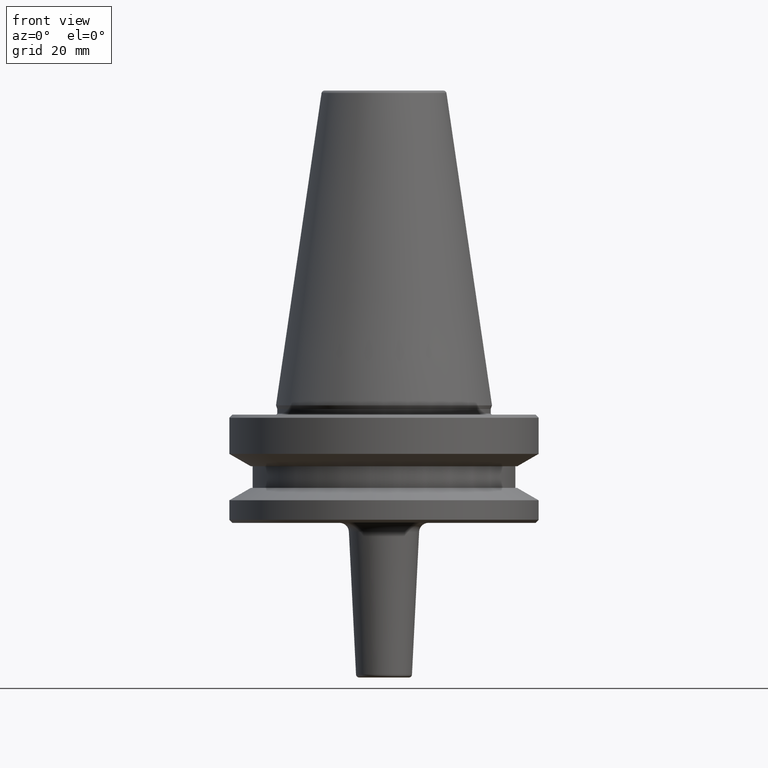
[diagram: clean part render]
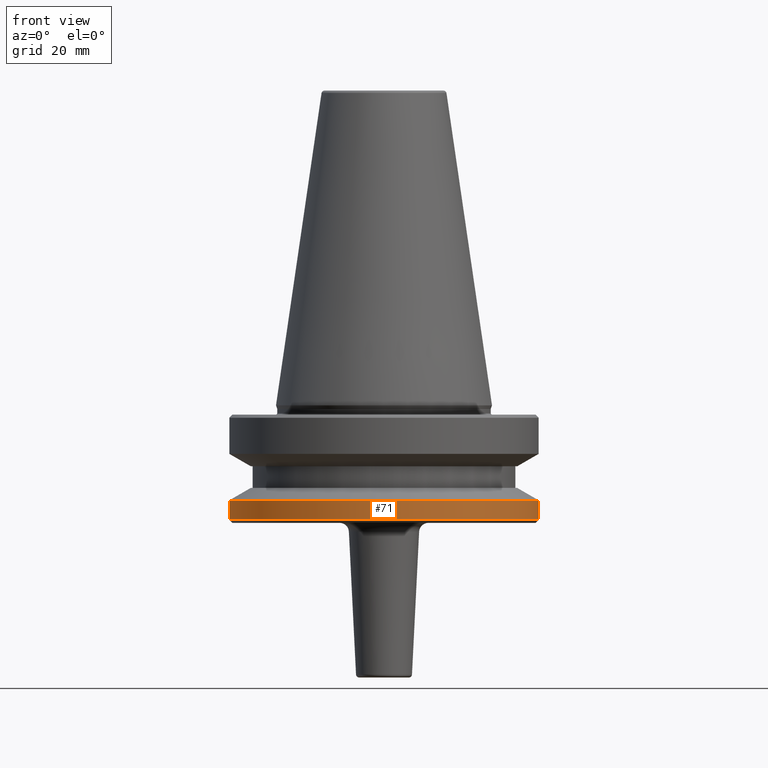
[diagram: same view with one face highlighted and labeled with its STEP entity id]
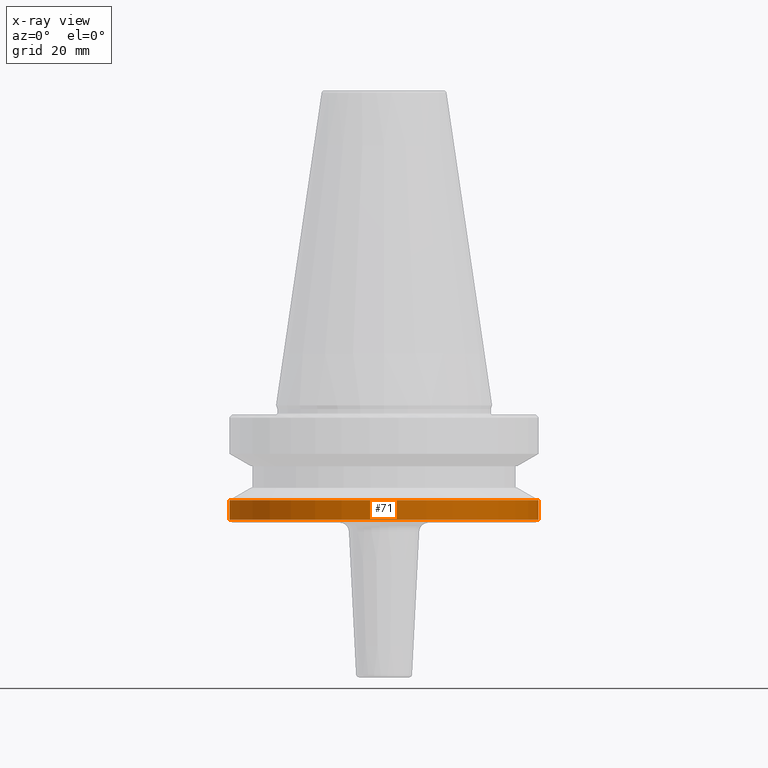
[diagram: x-ray of the same camera — body ghosted, the highlighted face saturated]
A machine part, front view. The second image highlights one B-rep face of the part: STEP entity #71.
The next image is the same camera in x-ray: the body ghosted, the highlighted face saturated — about 0% of this face is hidden behind the body in this view.
In plain terms, the highlighted cylindrical surface (partial cylindrical patch) has radius 50 mm, axis along (-0, -0, 1).
Its self-contained STEP definition (entity closure, byte-faithful):
#26 = VERTEX_POINT ( 'NONE', #94 ) ;
#71 = ADVANCED_FACE ( 'NONE', ( #536 ), #269, .T. ) ;
#94 = CARTESIAN_POINT ( 'NONE',  ( -50.00000000000000000, 6.123233995736766100E-015, -30.69977999677324500 ) ) ;
#106 = CARTESIAN_POINT ( 'NONE',  ( 0.0000000000000000000, 0.0000000000000000000, -37.00000000000002100 ) ) ;
#107 = ORIENTED_EDGE ( 'NONE', *, *, #724, .T. ) ;
#122 = DIRECTION ( 'NONE',  ( 1.000000000000000000, 0.0000000000000000000, 0.0000000000000000000 ) ) ;
#126 = AXIS2_PLACEMENT_3D ( 'NONE', #597, #666, #122 ) ;
#187 = CARTESIAN_POINT ( 'NONE',  ( -50.00000000000000000, 6.123233995736766100E-015, -37.00000000000002100 ) ) ;
#196 = DIRECTION ( 'NONE',  ( -0.0000000000000000000, -0.0000000000000000000, 1.000000000000000000 ) ) ;
#217 = AXIS2_PLACEMENT_3D ( 'NONE', #106, #810, #345 ) ;
#269 = CYLINDRICAL_SURFACE ( 'NONE', #126, 50.00000000000000000 ) ;
#282 = LINE ( 'NONE', #744, #676 ) ;
#288 = ORIENTED_EDGE ( 'NONE', *, *, #924, .T. ) ;
#345 = DIRECTION ( 'NONE',  ( 1.000000000000000000, 0.0000000000000000000, 0.0000000000000000000 ) ) ;
#404 = ORIENTED_EDGE ( 'NONE', *, *, #856, .F. ) ;
#436 = CARTESIAN_POINT ( 'NONE',  ( 50.00000000000000000, 0.0000000000000000000, -37.00000000000002100 ) ) ;
#460 = DIRECTION ( 'NONE',  ( -0.0000000000000000000, -0.0000000000000000000, 1.000000000000000000 ) ) ;
#514 = ORIENTED_EDGE ( 'NONE', *, *, #999, .F. ) ;
#523 = CIRCLE ( 'NONE', #217, 50.00000000000000000 ) ;
#527 = CARTESIAN_POINT ( 'NONE',  ( -50.00000000000000000, 6.123233995736766100E-015, 124.5046326327850600 ) ) ;
#536 = FACE_OUTER_BOUND ( 'NONE', #588, .T. ) ;
#573 = VECTOR ( 'NONE', #196, 1000.000000000000000 ) ;
#588 = EDGE_LOOP ( 'NONE', ( #404, #107, #288, #514 ) ) ;
#597 = CARTESIAN_POINT ( 'NONE',  ( 0.0000000000000000000, 0.0000000000000000000, 124.5046326327850600 ) ) ;
#599 = VERTEX_POINT ( 'NONE', #436 ) ;
#611 = CIRCLE ( 'NONE', #985, 50.00000000000000000 ) ;
#666 = DIRECTION ( 'NONE',  ( -0.0000000000000000000, -0.0000000000000000000, 1.000000000000000000 ) ) ;
#668 = VERTEX_POINT ( 'NONE', #678 ) ;
#676 = VECTOR ( 'NONE', #903, 1000.000000000000000 ) ;
#678 = CARTESIAN_POINT ( 'NONE',  ( 50.00000000000000000, 0.0000000000000000000, -30.69977999677324500 ) ) ;
#705 = DIRECTION ( 'NONE',  ( 1.000000000000000000, 0.0000000000000000000, 0.0000000000000000000 ) ) ;
#724 = EDGE_CURVE ( 'NONE', #967, #599, #523, .T. ) ;
#744 = CARTESIAN_POINT ( 'NONE',  ( 50.00000000000000000, 0.0000000000000000000, 124.5046326327850600 ) ) ;
#748 = LINE ( 'NONE', #527, #573 ) ;
#810 = DIRECTION ( 'NONE',  ( -0.0000000000000000000, -0.0000000000000000000, 1.000000000000000000 ) ) ;
#856 = EDGE_CURVE ( 'NONE', #967, #26, #748, .T. ) ;
#903 = DIRECTION ( 'NONE',  ( -0.0000000000000000000, -0.0000000000000000000, 1.000000000000000000 ) ) ;
#924 = EDGE_CURVE ( 'NONE', #599, #668, #282, .T. ) ;
#938 = CARTESIAN_POINT ( 'NONE',  ( 0.0000000000000000000, 0.0000000000000000000, -30.69977999677324500 ) ) ;
#967 = VERTEX_POINT ( 'NONE', #187 ) ;
#985 = AXIS2_PLACEMENT_3D ( 'NONE', #938, #460, #705 ) ;
#999 = EDGE_CURVE ( 'NONE', #26, #668, #611, .T. ) ;